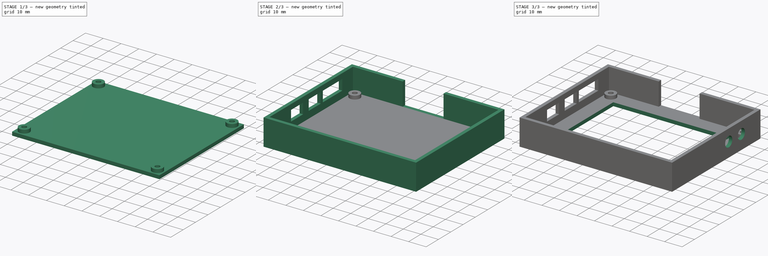
[diagram: build sequence overview — one tinted view per stage of 3, left to right]
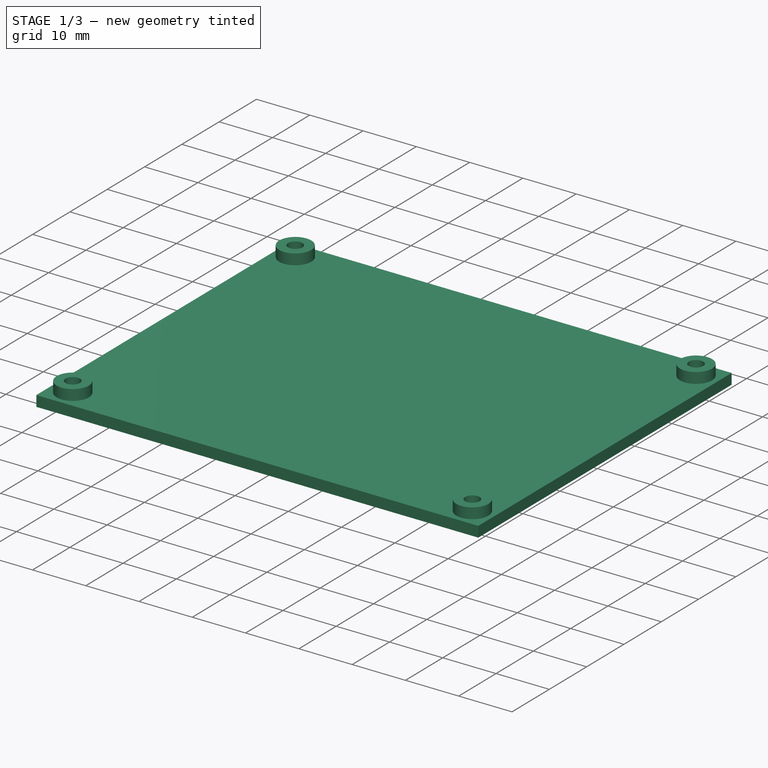
[diagram: stage 1 of 3 — iso view after this stage's code; geometry added in this stage tinted green]
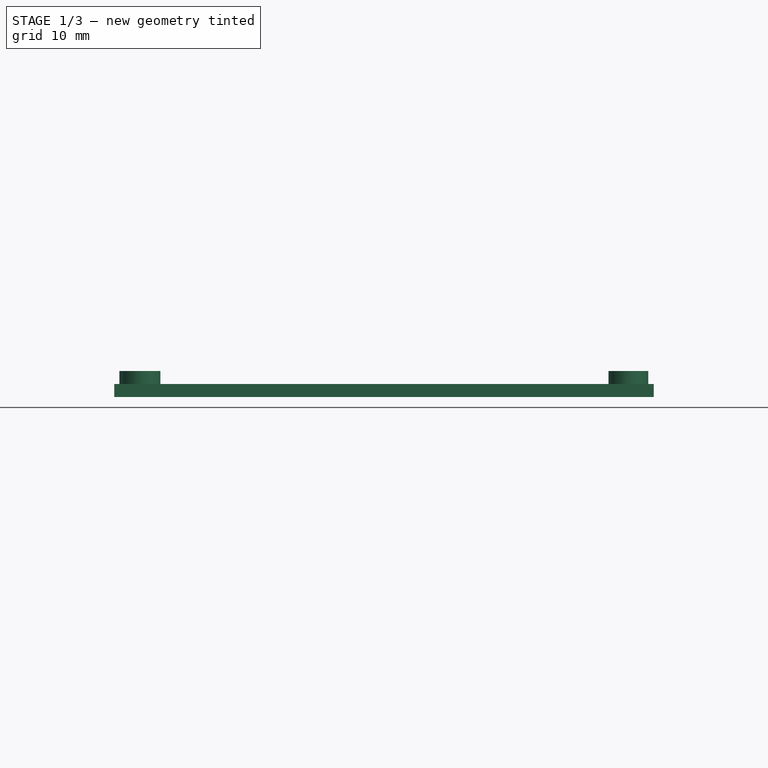
[diagram: stage 1 of 3 — front view after this stage's code; geometry added in this stage tinted green]
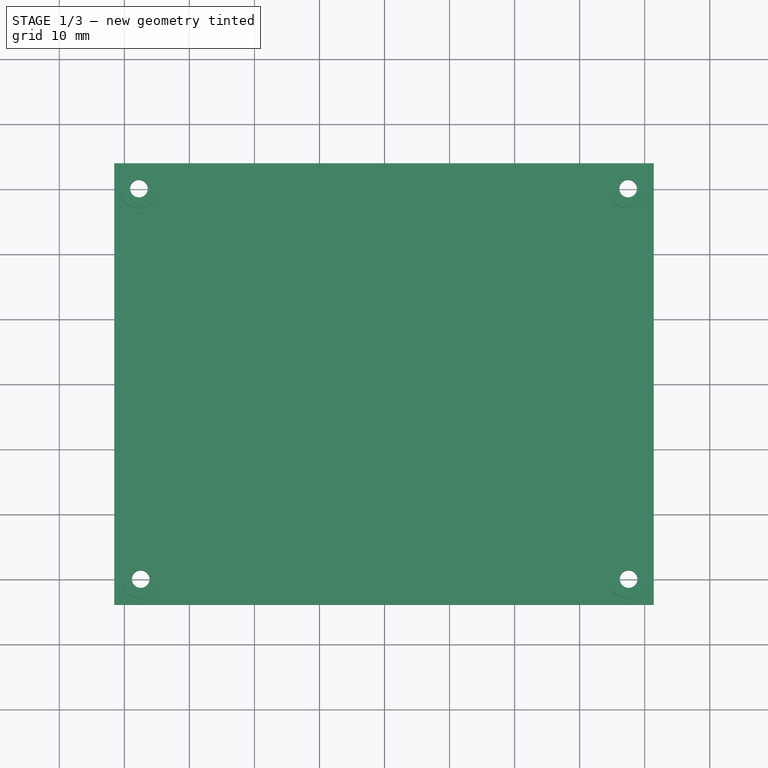
[diagram: stage 1 of 3 — top view after this stage's code; geometry added in this stage tinted green]
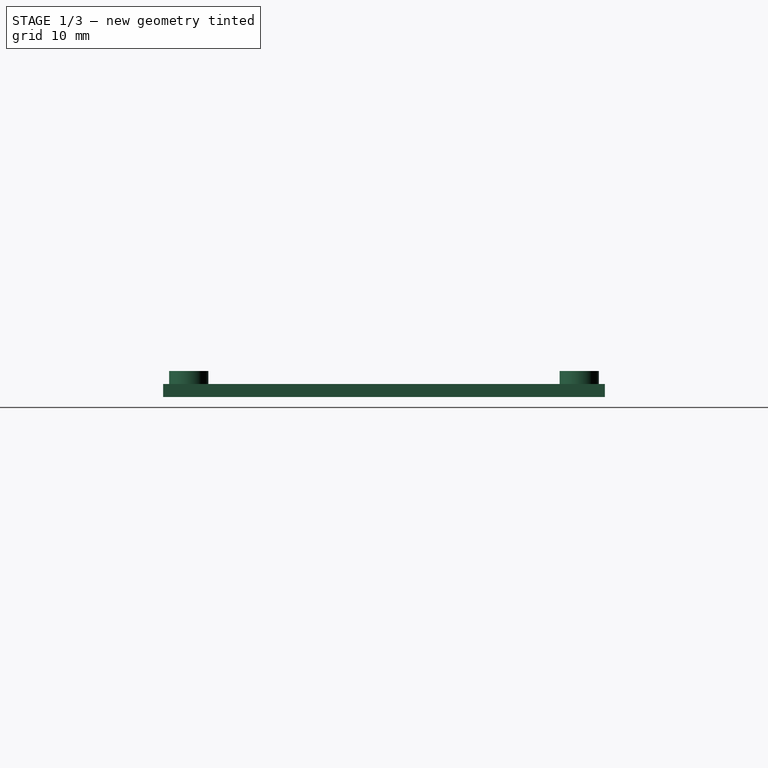
[diagram: stage 1 of 3 — right view after this stage's code; geometry added in this stage tinted green]
FCSTD DOCUMENT  (FreeCAD 0.19R24291 (Git))
Label: boitier_a1S_audio
License: All rights reserved
LicenseURL: http://en.wikipedia.org/wiki/All_rights_reserved
objects: Sketcher::SketchObject×8, PartDesign::Pocket×4, PartDesign::Pad×3, PartDesign::Plane×2, Image::ImagePlane×1, PartDesign::Body×1
note: 25 computed .brp shape members not serialized (recipe doc carries the construction recipe); baked Part::Feature solids carry a one-line shape summary decoded from their .brp

FEATURE [Sketcher::SketchObject] Sketch
  FullyConstrained = false
  MapMode = 5
  Support = -> [XY_Plane]
  sketch-geometry (8):
    g0: Circle CenterX=-37.4822 CenterY=-29.9636 CenterZ=0 NormalX=0 NormalY=0 NormalZ=1 AngleXU=0 Radius=1.35723
    g1: Circle CenterX=37.5288 CenterY=-29.9636 CenterZ=0 NormalX=0 NormalY=0 NormalZ=1 AngleXU=0 Radius=1.35723
    g2: Circle CenterX=-37.7549 CenterY=30.0814 CenterZ=0 NormalX=0 NormalY=0 NormalZ=1 AngleXU=0 Radius=1.35723
    g3: Circle CenterX=37.4583 CenterY=30.0814 CenterZ=0 NormalX=0 NormalY=0 NormalZ=1 AngleXU=0 Radius=1.35723
    g4: LineSegment StartX=-41.558 StartY=34.0119 StartZ=0 EndX=41.3987 EndY=34.0119 EndZ=0
    g5: LineSegment StartX=41.3987 StartY=34.0119 StartZ=0 EndX=41.3987 EndY=-33.8965 EndZ=0
    g6: LineSegment StartX=41.3987 StartY=-33.8965 StartZ=0 EndX=-41.558 EndY=-33.8965 EndZ=0
    g7: LineSegment StartX=-41.558 StartY=-33.8965 StartZ=0 EndX=-41.558 EndY=34.0119 EndZ=0
  constraints (13):
    c: Equal(g0,g1)
    c: Equal(g3,g2)
    c: Equal(g2,g0)
    c: Horizontal(g2,g3)
    c: Horizontal(g0,g1)
    c: Coincident(g4,g5)
    c: Coincident(g5,g6)
    c: Coincident(g6,g7)
    c: Coincident(g7,g4)
    c: Horizontal(g4)
    c: Horizontal(g6)
    c: Vertical(g5)
    c: Vertical(g7)
FEATURE [Image::ImagePlane] ImagePlane
  XSize = 82
  YSize = 67
FEATURE [PartDesign::Pad] Pad
  Direction = (1,1,1)
  Length = 2
  Length2 = 100
  Profile = -> Sketch
  Type = 0
FEATURE [PartDesign::Plane] DatumPlane
  Length = 60
  MapMode = 5
  Placement = pos=(0,0,2) rot=(0,0,1;0rad)
  ResizeMode = 0
  Support = -> [Pad]
  Width = 60
FEATURE [Sketcher::SketchObject] Sketch001
  ExternalGeometry = -> [Pad]
  FullyConstrained = false
  MapMode = 5
  Placement = pos=(0,0,2) rot=(0,0,1;0rad)
  Support = -> [DatumPlane]
  sketch-geometry (8):
    g0: Circle CenterX=-37.4822 CenterY=-29.9636 CenterZ=0 NormalX=0 NormalY=0 NormalZ=1 AngleXU=0 Radius=1.35723
    g1: Circle CenterX=-37.7549 CenterY=30.0814 CenterZ=0 NormalX=0 NormalY=0 NormalZ=1 AngleXU=0 Radius=1.35723
    g2: Circle CenterX=37.4583 CenterY=30.0814 CenterZ=0 NormalX=0 NormalY=0 NormalZ=1 AngleXU=0 Radius=1.35723
    g3: Circle CenterX=37.5288 CenterY=-29.9636 CenterZ=0 NormalX=0 NormalY=0 NormalZ=1 AngleXU=0 Radius=1.35723
    g4: Circle CenterX=-37.7549 CenterY=30.0814 CenterZ=0 NormalX=0 NormalY=0 NormalZ=1 AngleXU=0 Radius=3.01329
    g5: Circle CenterX=37.4583 CenterY=30.0814 CenterZ=0 NormalX=0 NormalY=0 NormalZ=1 AngleXU=0 Radius=3.01329
    g6: Circle CenterX=37.5288 CenterY=-29.9636 CenterZ=0 NormalX=0 NormalY=0 NormalZ=1 AngleXU=0 Radius=3.01329
    g7: Circle CenterX=-37.4822 CenterY=-29.9636 CenterZ=0 NormalX=0 NormalY=0 NormalZ=1 AngleXU=0 Radius=3.01329
  constraints (15):
    c: Coincident(g0,g-6)
    c: Coincident(g1,g-3)
    c: Coincident(g2,g-4)
    c: Coincident(g3,g-5)
    c: Equal(g0,g3)
    c: Equal(g3,g2)
    c: Equal(g2,g1)
    c: Equal(g0,g-6)
    c: Coincident(g4,g1)
    c: Coincident(g5,g2)
    c: Coincident(g6,g3)
    c: Coincident(g7,g0)
    c: Equal(g7,g4)
    c: Equal(g4,g5)
    c: Equal(g5,g6)
FEATURE [PartDesign::Pad] Pad001
  BaseFeature = -> Pad
  Direction = (1,1,1)
  Length = 2
  Length2 = 100
  Profile = -> Sketch001
  Type = 0
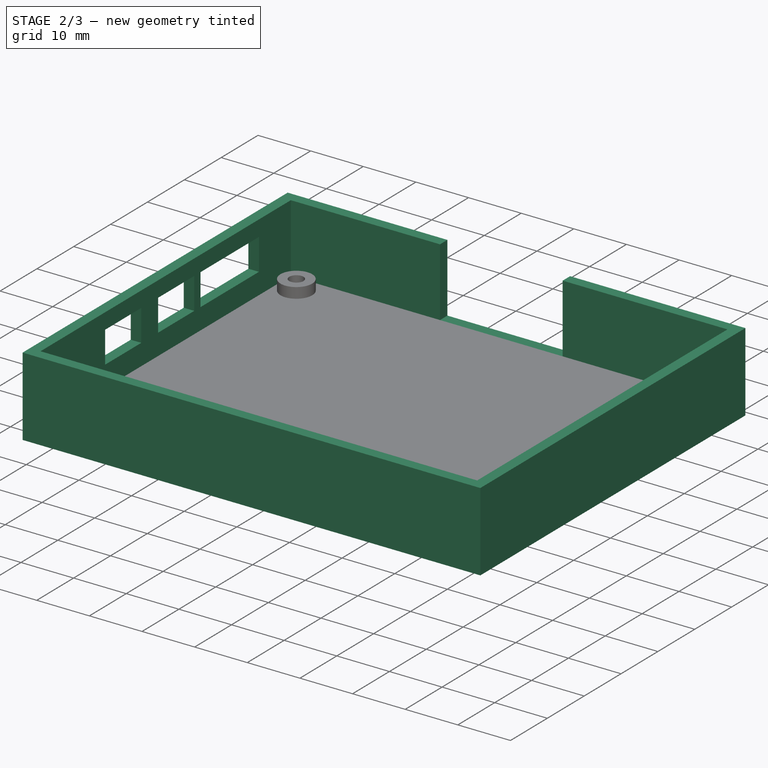
[diagram: stage 2 of 3 — iso view after this stage's code; geometry added in this stage tinted green]
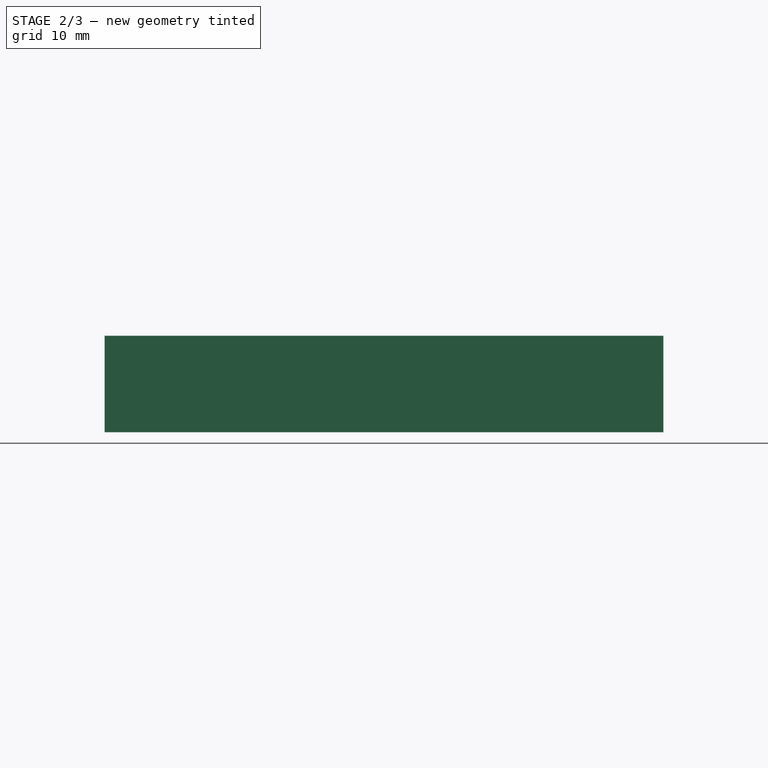
[diagram: stage 2 of 3 — front view after this stage's code; geometry added in this stage tinted green]
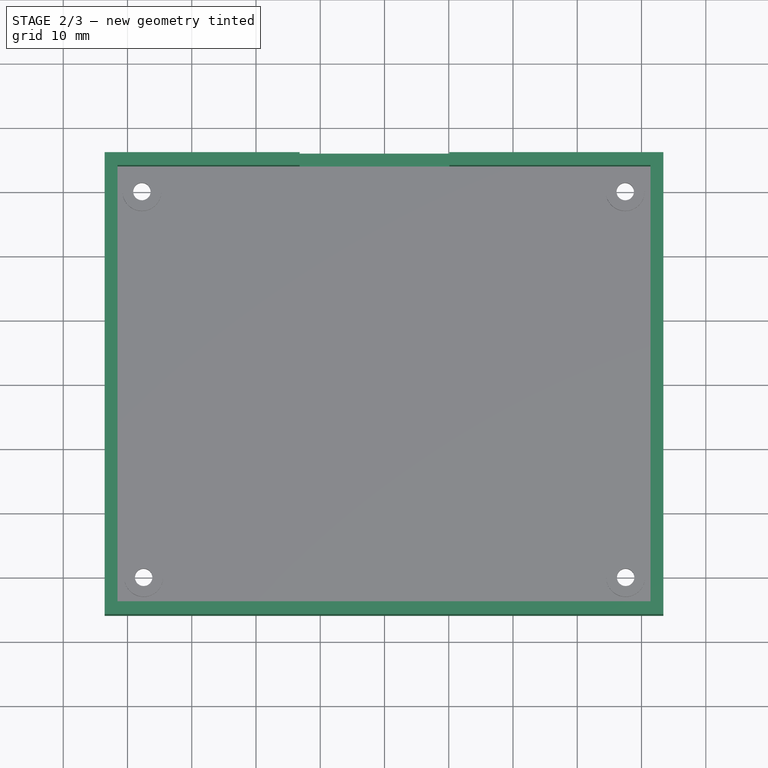
[diagram: stage 2 of 3 — top view after this stage's code; geometry added in this stage tinted green]
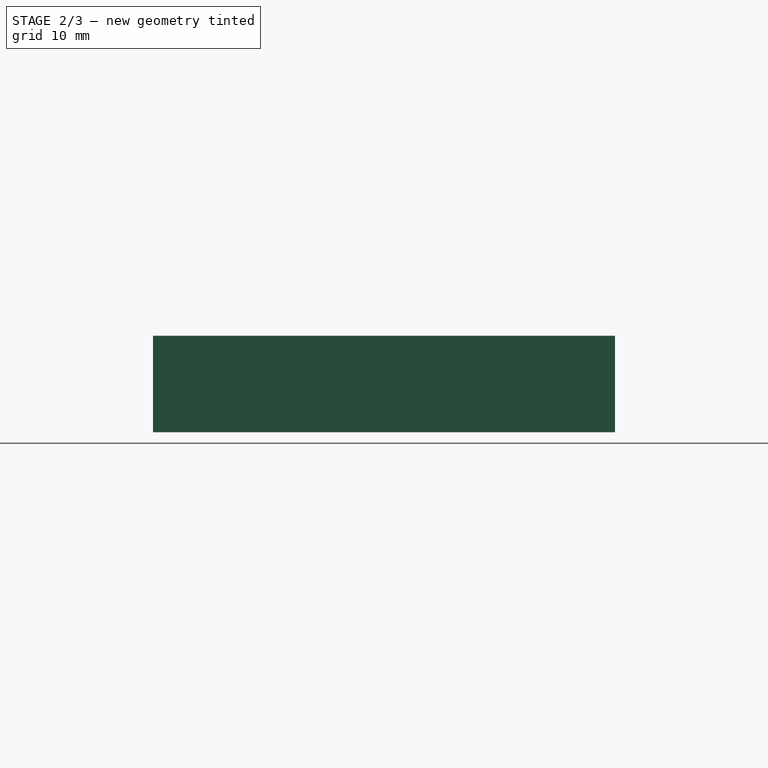
[diagram: stage 2 of 3 — right view after this stage's code; geometry added in this stage tinted green]
FEATURE [Sketcher::SketchObject] Sketch002
  ExternalGeometry = -> [Pad001]
  FullyConstrained = true
  MapMode = 5
  Support = -> [XY_Plane]
  sketch-geometry (8):
    g0: LineSegment StartX=-41.558 StartY=34.0119 StartZ=0 EndX=41.3987 EndY=34.0119 EndZ=0
    g1: LineSegment StartX=41.3987 StartY=34.0119 StartZ=0 EndX=41.3987 EndY=-33.8965 EndZ=0
    g2: LineSegment StartX=41.3987 StartY=-33.8965 StartZ=0 EndX=-41.558 EndY=-33.8965 EndZ=0
    g3: LineSegment StartX=-41.558 StartY=-33.8965 StartZ=0 EndX=-41.558 EndY=34.0119 EndZ=0
    g4: LineSegment StartX=-43.558 StartY=36.0119 StartZ=0 EndX=43.3987 EndY=36.0119 EndZ=0
    g5: LineSegment StartX=43.3987 StartY=36.0119 StartZ=0 EndX=43.3987 EndY=-35.8965 EndZ=0
    g6: LineSegment StartX=43.3987 StartY=-35.8965 StartZ=0 EndX=-43.558 EndY=-35.8965 EndZ=0
    g7: LineSegment StartX=-43.558 StartY=-35.8965 StartZ=0 EndX=-43.558 EndY=36.0119 EndZ=0
  constraints (22):
    c: Coincident(g0,g1)
    c: Coincident(g1,g2)
    c: Coincident(g2,g3)
    c: Coincident(g3,g0)
    c: Horizontal(g0)
    c: Horizontal(g2)
    c: Vertical(g1)
    c: Vertical(g3)
    c: Coincident(g0,g-3)
    c: Coincident(g1,g-4)
    c: Coincident(g4,g5)
    c: Coincident(g5,g6)
    c: Coincident(g6,g7)
    c: Coincident(g7,g4)
    c: Horizontal(g4)
    c: Horizontal(g6)
    c: Vertical(g5)
    c: Vertical(g7)
    c: Distance(g2,g6) = 2
    c: Distance(g6,g3) = 2
    c: Distance(g5,g1) = 2
    c: Distance(g4,g0) = 2
FEATURE [PartDesign::Pad] Pad002
  BaseFeature = -> Pad001
  Direction = (1,1,1)
  Length = 15
  Length2 = 100
  Profile = -> Sketch002
  Type = 0
FEATURE [Sketcher::SketchObject] Sketch003
  ExternalGeometry = -> [Pad002]
  FullyConstrained = false
  MapMode = 5
  Placement = pos=(0,0,2) rot=(0,0,1;0rad)
  Support = -> [DatumPlane]
  sketch-geometry (4):
    g0: LineSegment StartX=-13.2108 StartY=36.0119 StartZ=0 EndX=10.093 EndY=36.0119 EndZ=0
    g1: LineSegment StartX=10.093 StartY=36.0119 StartZ=0 EndX=10.093 EndY=34.0119 EndZ=0
    g2: LineSegment StartX=10.093 StartY=34.0119 StartZ=0 EndX=-13.2108 EndY=34.0119 EndZ=0
    g3: LineSegment StartX=-13.2108 StartY=34.0119 StartZ=0 EndX=-13.2108 EndY=36.0119 EndZ=0
  constraints (10):
    c: Coincident(g0,g1)
    c: Coincident(g1,g2)
    c: Coincident(g2,g3)
    c: Coincident(g3,g0)
    c: Horizontal(g0)
    c: Horizontal(g2)
    c: Vertical(g1)
    c: Vertical(g3)
    c: PointOnObject(g0,g-4)
    c: PointOnObject(g1,g-3)
FEATURE [PartDesign::Pocket] Pocket
  BaseFeature = -> Pad002
  Length = 15
  Length2 = 100
  Profile = -> Sketch003
  Reversed = true
  Type = 0
FEATURE [PartDesign::Plane] DatumPlane001
  Length = 66.8122
  MapMode = 11
  Placement = pos=(37.4583,30.0814,4) rot=(0,0,1;1.5708rad)
  ResizeMode = 0
  Support = -> [Pocket]
  Width = 74.1891
FEATURE [Sketcher::SketchObject] Sketch004
  AttachmentOffset = pos=(0,0,2) rot=(0,0,1;0rad)
  ExternalGeometry = -> [Pocket]
  FullyConstrained = false
  MapMode = 5
  Placement = pos=(37.4583,30.0814,6) rot=(0,0,1;1.5708rad)
  Support = -> [DatumPlane001]
  sketch-geometry (12):
    g0: LineSegment StartX=-46.4565 StartY=81.0163 StartZ=0 EndX=-36.6397 EndY=81.0163 EndZ=0
    g1: LineSegment StartX=-36.6397 StartY=81.0163 StartZ=0 EndX=-36.6397 EndY=27.3653 EndZ=0
    g2: LineSegment StartX=-36.6397 StartY=27.3653 StartZ=0 EndX=-46.4565 EndY=27.3653 EndZ=0
    g3: LineSegment StartX=-46.4565 StartY=27.3653 StartZ=0 EndX=-46.4565 EndY=81.0163 EndZ=0
    g4: LineSegment StartX=-32.077 StartY=81.0163 StartZ=0 EndX=-22.2603 EndY=81.0163 EndZ=0
    g5: LineSegment StartX=-22.2603 StartY=81.0163 StartZ=0 EndX=-22.2603 EndY=27.3653 EndZ=0
    g6: LineSegment StartX=-22.2603 StartY=27.3653 StartZ=0 EndX=-32.077 EndY=27.3653 EndZ=0
    g7: LineSegment StartX=-32.077 StartY=27.3653 StartZ=0 EndX=-32.077 EndY=81.0163 EndZ=0
    g8: LineSegment StartX=-20.5671 StartY=81.0163 StartZ=0 EndX=-4.71897 EndY=81.0163 EndZ=0
    g9: LineSegment StartX=-4.71897 StartY=81.0163 StartZ=0 EndX=-4.71897 EndY=27.3653 EndZ=0
    g10: LineSegment StartX=-4.71897 StartY=27.3653 StartZ=0 EndX=-20.5671 EndY=27.3653 EndZ=0
    g11: LineSegment StartX=-20.5671 StartY=27.3653 StartZ=0 EndX=-20.5671 EndY=81.0163 EndZ=0
  constraints (31):
    c: Coincident(g0,g1)
    c: Coincident(g1,g2)
    c: Coincident(g2,g3)
    c: Coincident(g3,g0)
    c: Horizontal(g0)
    c: Horizontal(g2)
    c: Vertical(g1)
    c: Vertical(g3)
    c: PointOnObject(g0,g-4)
    c: PointOnObject(g1,g-3)
    c: Coincident(g4,g5)
    c: Coincident(g5,g6)
    c: Coincident(g6,g7)
    c: Coincident(g7,g4)
    c: Horizontal(g4)
    c: Horizontal(g6)
    c: Vertical(g5)
    c: Vertical(g7)
    c: PointOnObject(g4,g-4)
    c: PointOnObject(g5,g-3)
    c: Equal(g4,g0)
    c: Coincident(g8,g9)
    c: Coincident(g9,g10)
    c: Coincident(g10,g11)
    c: Coincident(g11,g8)
    c: Horizontal(g8)
    c: Horizontal(g10)
    c: Vertical(g9)
    c: Vertical(g11)
    c: PointOnObject(g8,g-4)
    c: PointOnObject(g9,g-3)
FEATURE [PartDesign::Pocket] Pocket001
  BaseFeature = -> Pocket
  Length = 6
  Length2 = 100
  Profile = -> Sketch004
  Reversed = true
  Type = 0
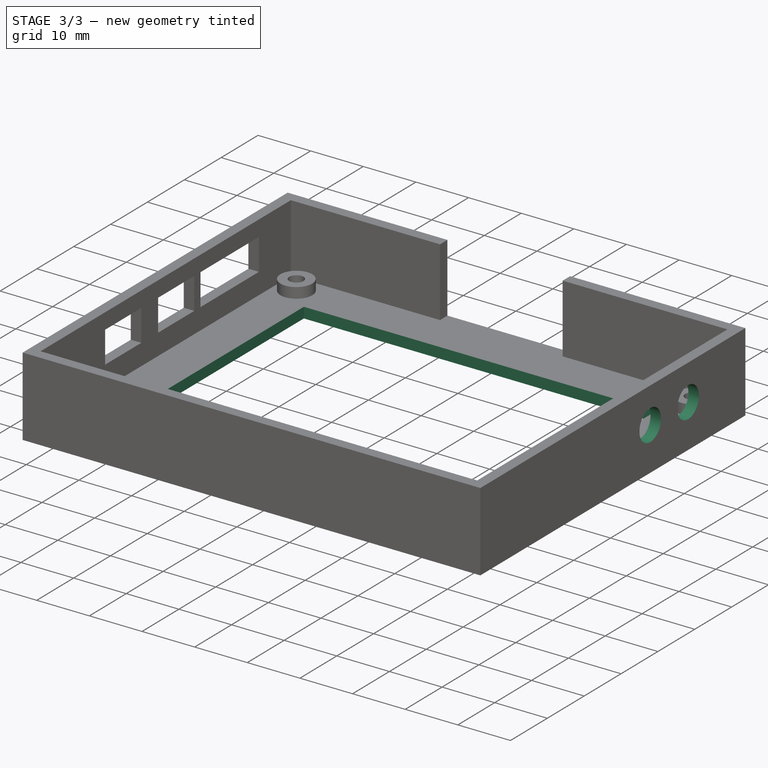
[diagram: stage 3 of 3 — iso view after this stage's code; geometry added in this stage tinted green]
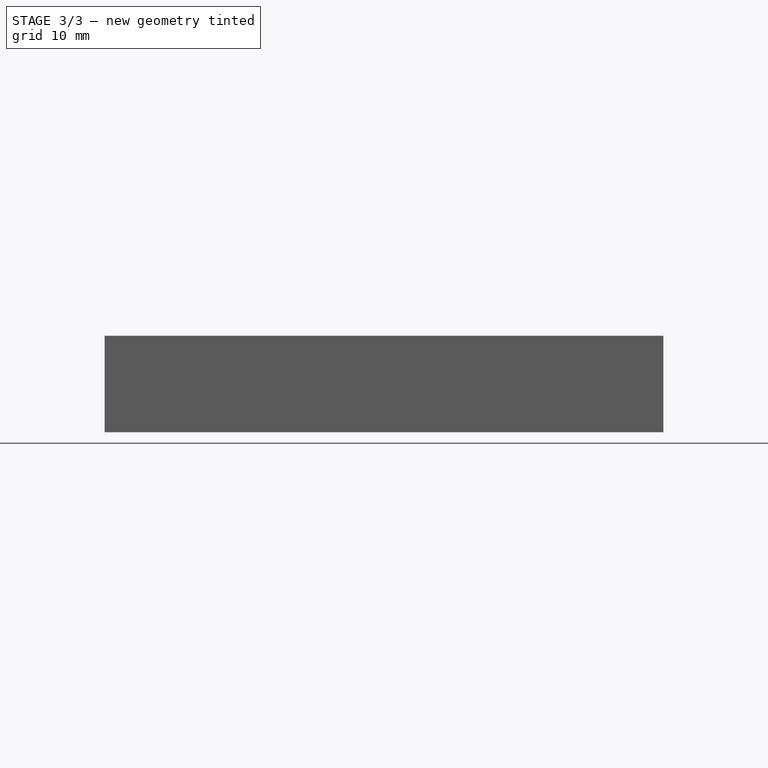
[diagram: stage 3 of 3 — front view after this stage's code; geometry added in this stage tinted green]
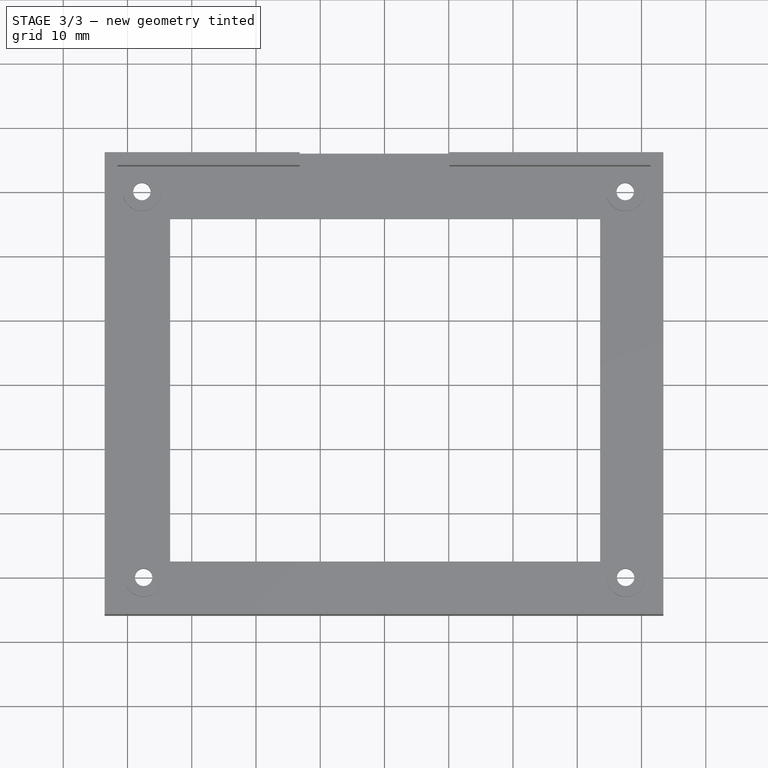
[diagram: stage 3 of 3 — top view after this stage's code; geometry added in this stage tinted green]
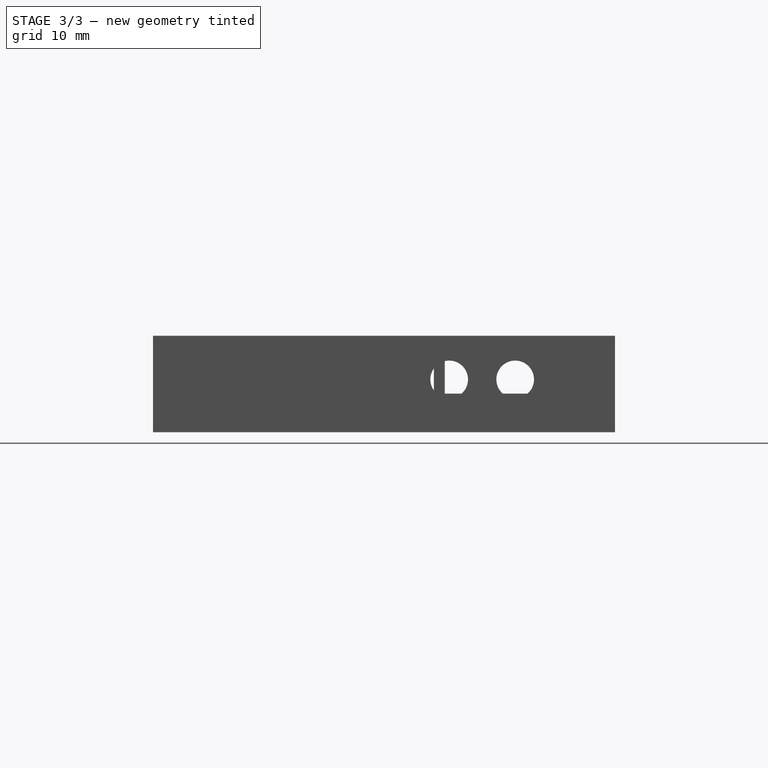
[diagram: stage 3 of 3 — right view after this stage's code; geometry added in this stage tinted green]
FEATURE [Sketcher::SketchObject] Sketch005
  FullyConstrained = false
  MapMode = 5
  Placement = pos=(37.4583,30.0814,4) rot=(0,0,1;1.5708rad)
  Support = -> [DatumPlane001]
  sketch-geometry (16):
    g0: LineSegment StartX=-23.6732 StartY=-3.90398 StartZ=0 EndX=-16.0887 EndY=-3.90398 EndZ=0
    g1: LineSegment StartX=-16.0887 StartY=-3.90398 StartZ=0 EndX=-16.0887 EndY=-5.885 EndZ=0
    g2: LineSegment StartX=-16.0887 StartY=-5.885 StartZ=0 EndX=-23.6732 EndY=-5.885 EndZ=0
    g3: LineSegment StartX=-23.6732 StartY=-5.885 StartZ=0 EndX=-23.6732 EndY=-3.90398 EndZ=0
    g4: LineSegment StartX=-13.2021 StartY=-3.90398 StartZ=0 EndX=-6.01379 EndY=-3.90398 EndZ=0
    g5: LineSegment StartX=-6.01379 StartY=-3.90398 StartZ=0 EndX=-6.01379 EndY=-5.885 EndZ=0
    g6: LineSegment StartX=-6.01379 StartY=-5.885 StartZ=0 EndX=-13.2021 EndY=-5.885 EndZ=0
    g7: LineSegment StartX=-13.2021 StartY=-5.885 StartZ=0 EndX=-13.2021 EndY=-3.90398 EndZ=0
    g8: LineSegment StartX=-23.6732 StartY=-3.90398 StartZ=0 EndX=-16.0887 EndY=-3.90398 EndZ=0
    g9: LineSegment StartX=-16.0887 StartY=-3.90398 StartZ=0 EndX=-16.0887 EndY=-5.885 EndZ=0
    g10: LineSegment StartX=-16.0887 StartY=-5.885 StartZ=0 EndX=-23.6732 EndY=-5.885 EndZ=0
    g11: LineSegment StartX=-23.6732 StartY=-5.885 StartZ=0 EndX=-23.6732 EndY=-3.90398 EndZ=0
    g12: LineSegment StartX=-13.2021 StartY=-3.90398 StartZ=0 EndX=-6.01379 EndY=-3.90398 EndZ=0
    g13: LineSegment StartX=-6.01379 StartY=-3.90398 StartZ=0 EndX=-6.01379 EndY=-5.885 EndZ=0
    g14: LineSegment StartX=-6.01379 StartY=-5.885 StartZ=0 EndX=-13.2021 EndY=-5.885 EndZ=0
    g15: LineSegment StartX=-13.2021 StartY=-5.885 StartZ=0 EndX=-13.2021 EndY=-3.90398 EndZ=0
  constraints (36):
    c: Coincident(g0,g1)
    c: Coincident(g1,g2)
    c: Coincident(g2,g3)
    c: Coincident(g3,g0)
    c: Horizontal(g0)
    c: Horizontal(g2)
    c: Vertical(g1)
    c: Vertical(g3)
    c: Coincident(g4,g5)
    c: Coincident(g5,g6)
    c: Coincident(g6,g7)
    c: Coincident(g7,g4)
    c: Horizontal(g4)
    c: Horizontal(g6)
    c: Vertical(g5)
    c: Vertical(g7)
    c: Coincident(g8,g9)
    c: Coincident(g9,g10)
    c: Coincident(g10,g11)
    c: Coincident(g11,g8)
    c: Horizontal(g8)
    c: Horizontal(g10)
    c: Vertical(g9)
    c: Vertical(g11)
    c: Coincident(g8,g0)
    c: Coincident(g9,g1)
    c: Coincident(g12,g13)
    c: Coincident(g13,g14)
    c: Coincident(g14,g15)
    c: Coincident(g15,g12)
    c: Horizontal(g12)
    c: Horizontal(g14)
    c: Vertical(g13)
    c: Vertical(g15)
    c: Coincident(g12,g4)
    c: Coincident(g13,g5)
FEATURE [Sketcher::SketchObject] Sketch006
  ExternalGeometry = -> [Sketch005]
  FullyConstrained = false
  MapMode = 5
  Placement = pos=(0,0,0) rot=(0.57735,0.57735,0.57735;2.0944rad)
  Support = -> [YZ_Plane]
  sketch-geometry (6):
    g0: LineSegment StartX=6.40824 StartY=4 StartZ=0 EndX=10.2005 EndY=8.21247 EndZ=0
    g1: LineSegment StartX=10.2005 StartY=8.21247 StartZ=0 EndX=13.9927 EndY=4 EndZ=0
    g2: LineSegment StartX=16.8793 StartY=4 StartZ=0 EndX=20.4735 EndY=8.21247 EndZ=0
    g3: LineSegment StartX=20.4735 StartY=8.21247 StartZ=0 EndX=24.0676 EndY=4 EndZ=0
    g4: Circle CenterX=10.2005 CenterY=8.21247 CenterZ=0 NormalX=0 NormalY=0 NormalZ=1 AngleXU=0 Radius=2.92959
    g5: Circle CenterX=20.4735 CenterY=8.21247 CenterZ=0 NormalX=0 NormalY=0 NormalZ=1 AngleXU=0 Radius=2.92959
  constraints (12):
    c: Coincident(g0,g-4)
    c: Coincident(g1,g-4)
    c: Coincident(g2,g-3)
    c: Coincident(g3,g2)
    c: Coincident(g3,g-3)
    c: Horizontal(g0,g2)
    c: Equal(g0,g1)
    c: Equal(g2,g3)
    c: Coincident(g4,g0)
    c: Coincident(g5,g2)
    c: Equal(g4,g5)
    c: Coincident(g1,g4)
FEATURE [PartDesign::Pocket] Pocket002
  BaseFeature = -> Pocket001
  Length = 0
  Length2 = 100
  Profile = -> Sketch006
  Type = 3
  UpToFace = -> Pocket001 [Face8]
FEATURE [Sketcher::SketchObject] Sketch007
  FullyConstrained = false
  MapMode = 5
  Support = -> [XY_Plane]
  sketch-geometry (4):
    g0: LineSegment StartX=-33.3662 StartY=25.8504 StartZ=0 EndX=33.5462 EndY=25.8504 EndZ=0
    g1: LineSegment StartX=33.5462 StartY=25.8504 StartZ=0 EndX=33.5462 EndY=-27.4754 EndZ=0
    g2: LineSegment StartX=33.5462 StartY=-27.4754 StartZ=0 EndX=-33.3662 EndY=-27.4754 EndZ=0
    g3: LineSegment StartX=-33.3662 StartY=-27.4754 StartZ=0 EndX=-33.3662 EndY=25.8504 EndZ=0
  constraints (8):
    c: Coincident(g0,g1)
    c: Coincident(g1,g2)
    c: Coincident(g2,g3)
    c: Coincident(g3,g0)
    c: Horizontal(g0)
    c: Horizontal(g2)
    c: Vertical(g1)
    c: Vertical(g3)
FEATURE [PartDesign::Pocket] Pocket003
  BaseFeature = -> Pocket002
  Length = 5
  Length2 = 100
  Profile = -> Sketch007
  Reversed = true
  Type = 0
FEATURE [PartDesign::Body] Body
  Group = -> [Sketch,Pad,DatumPlane,Sketch001,Pad001,Sketch002,Pad002,Sketch003,Pocket,DatumPlane001,Sketch004,Pocket001,Sketch005,Sketch006,Pocket002,Sketch007,Pocket003]
  Origin = -> Origin
  Tip = -> Pocket003
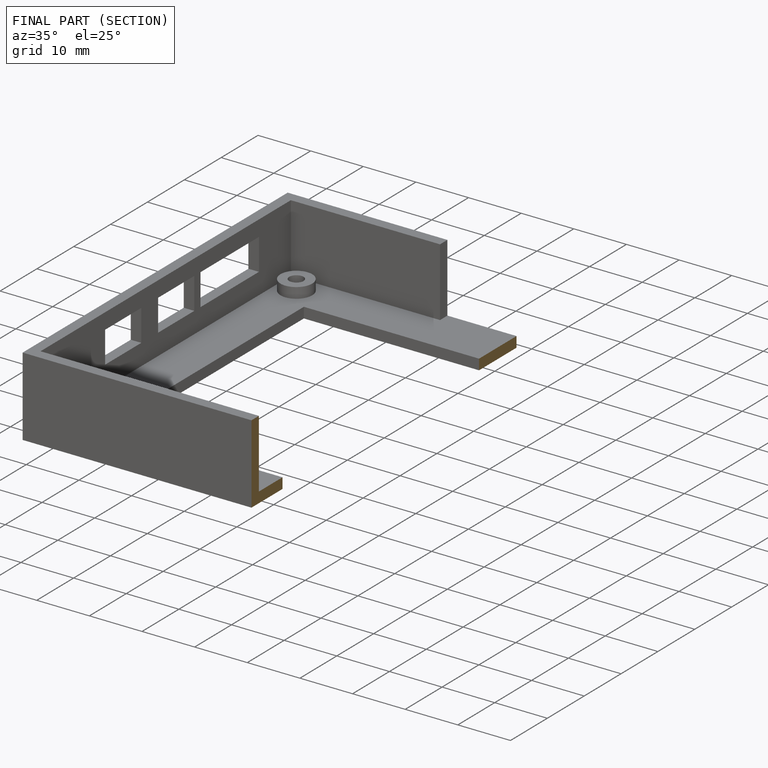
[diagram: finished part — half-section view (interior)]
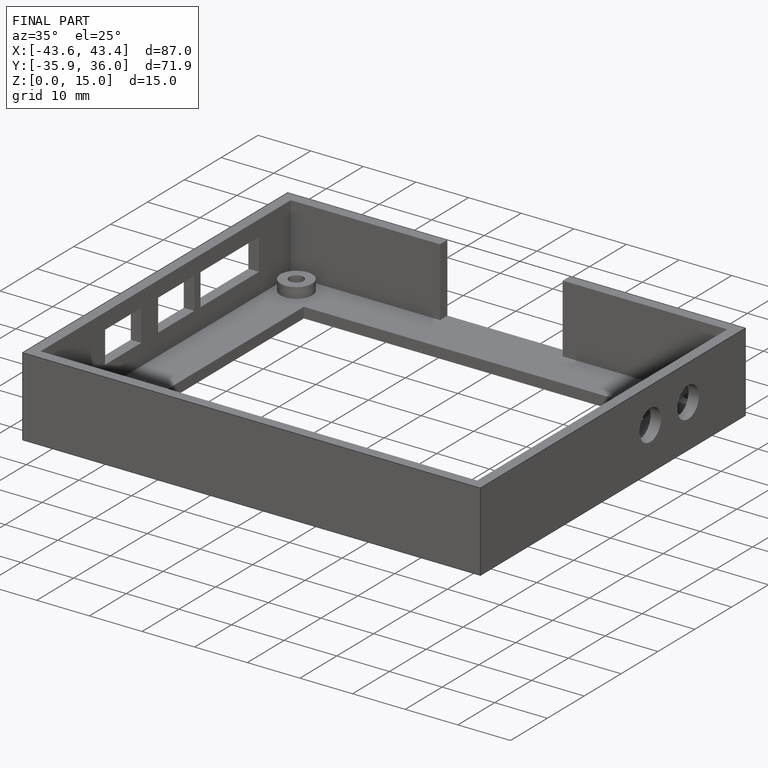
[diagram: finished part — iso view with bounding-box wireframe]
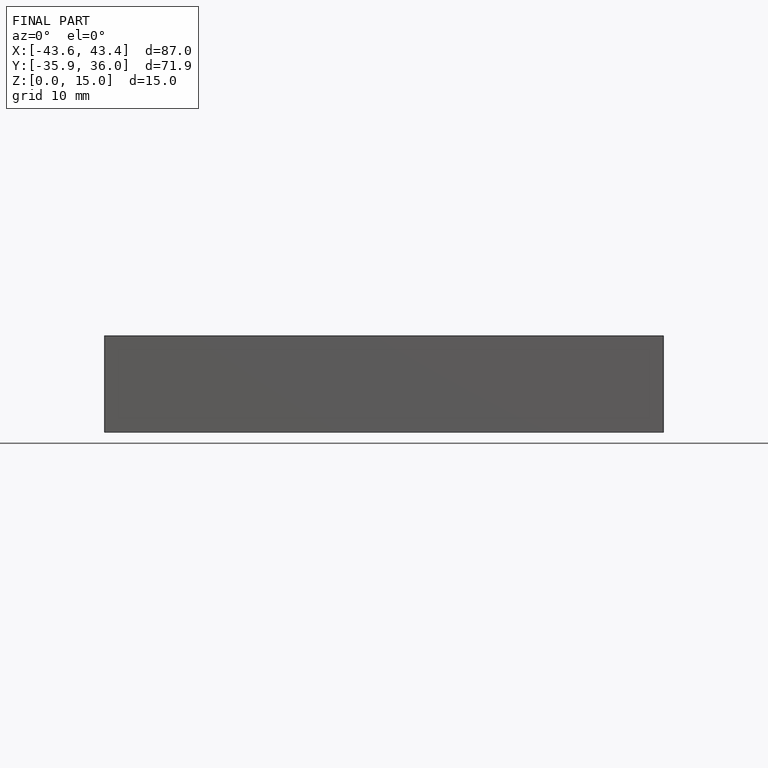
[diagram: finished part — front view with bounding-box wireframe]
